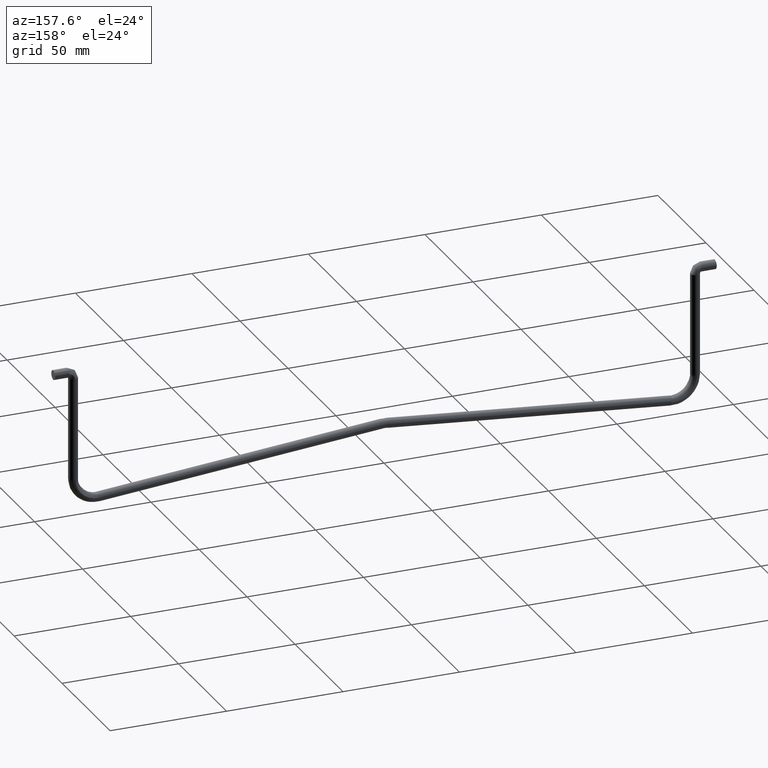
[diagram: clean part render]
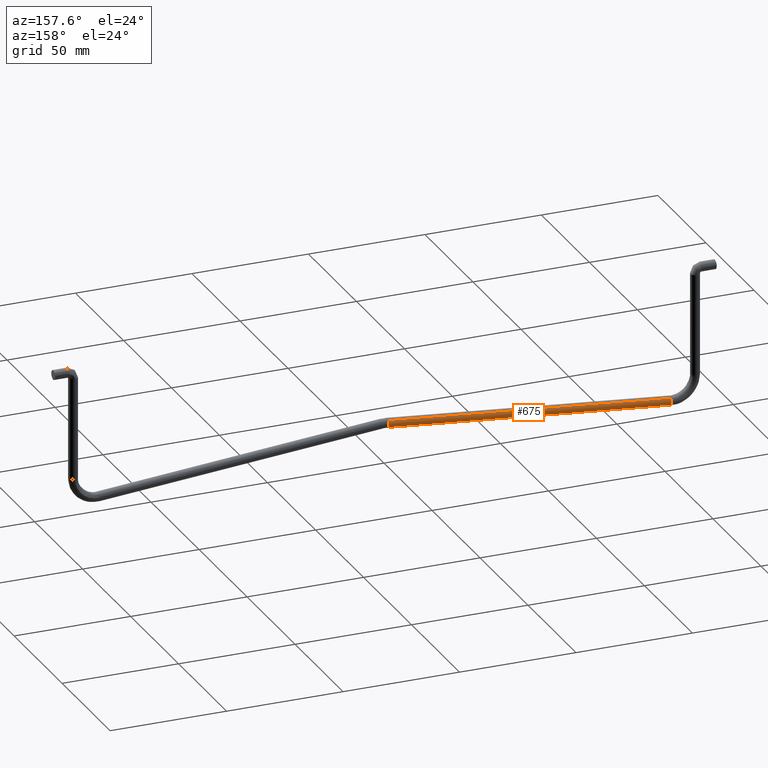
[diagram: same view with one face highlighted and labeled with its STEP entity id]
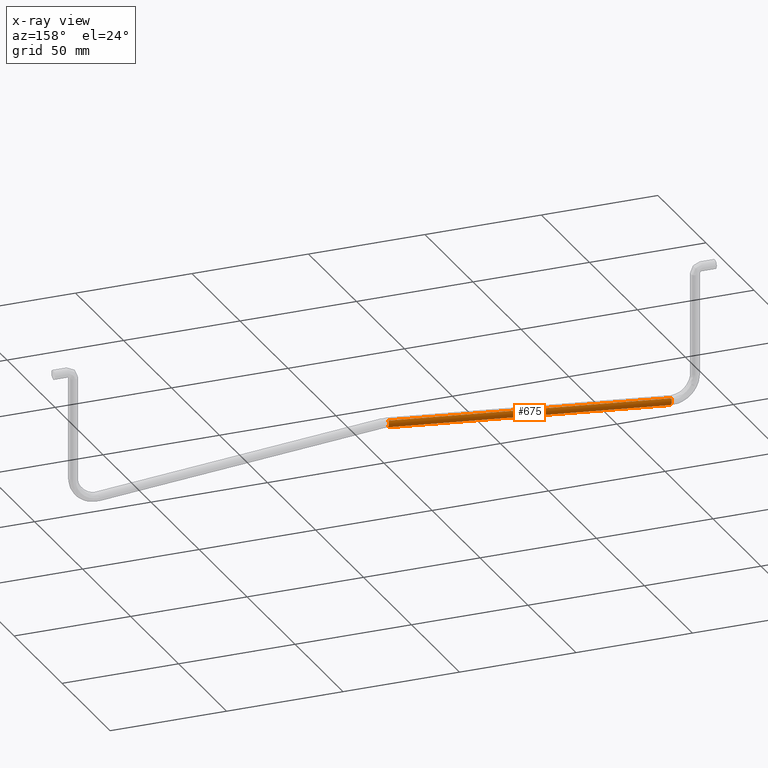
[diagram: x-ray of the same camera — body ghosted, the highlighted face saturated]
A machine part, auxiliary view. The second image highlights one B-rep face of the part: STEP entity #675.
The next image is the same camera in x-ray: the body ghosted, the highlighted face saturated — about 0% of this face is hidden behind the body in this view.
In plain terms, the highlighted face is a freeform B-spline surface patch.
Its self-contained STEP definition (entity closure, byte-faithful):
#605=CARTESIAN_POINT('',(-125.517188430100900,1.474554673620249,-59.578358859859442));
#606=CARTESIAN_POINT('',(-125.649245087282080,2.825735088851567,-58.109729388280783));
#607=CARTESIAN_POINT('',(-125.770252718993800,1.351180415231320,-56.763978420392512));
#608=CARTESIAN_POINT('',(1.976819930898041,1.474554673620251,-48.114315082574649));
#609=CARTESIAN_POINT('',(1.844763273716815,2.825735088851570,-46.645685610995983));
#610=CARTESIAN_POINT('',(1.723755642005128,1.351180415231322,-45.299934643107719));
#618=(BOUNDED_SURFACE()B_SPLINE_SURFACE(2,1,((#605,#608),(#606,#609),(#607,#610)),.UNSPECIFIED.,.F.,.F.,.U.)B_SPLINE_SURFACE_WITH_KNOTS((3,3),(2,2),(0.0,3.313708498984753),(0.0,128.008384364782810),.UNSPECIFIED.)GEOMETRIC_REPRESENTATION_ITEM()RATIONAL_B_SPLINE_SURFACE(((1.0,1.0),(0.707106781186548,0.707106781186548),(1.0,1.0)))REPRESENTATION_ITEM('')SURFACE());
#619=CARTESIAN_POINT('',(-1.254914958121540,1.999961088060420,-47.035749243734479));
#620=VERTEX_POINT('',#619);
#621=CARTESIAN_POINT('',(-1.132790072276494,1.474555115114996,-48.393925426537628));
#622=VERTEX_POINT('',#621);
#623=CARTESIAN_POINT('',(-1.254914958121540,1.999961088060420,-47.035749243734479));
#624=CARTESIAN_POINT('',(-1.229786811085243,2.002120198204557,-47.315204578219259));
#625=CARTESIAN_POINT('',(-1.185106076773051,1.898025314543128,-47.812108290784373));
#626=CARTESIAN_POINT('',(-1.147187390014988,1.622050153548941,-48.233809870127253));
#627=CARTESIAN_POINT('',(-1.132790072276494,1.474555115114996,-48.393925426537628));
#628=B_SPLINE_CURVE_WITH_KNOTS('',3,(#623,#624,#625,#626,#627),.UNSPECIFIED.,.F.,.U.,(4,1,4),(0.000000133486371,0.841578913541103,1.496141226292736),.UNSPECIFIED.);
#629=EDGE_CURVE('',#620,#622,#628,.T.);
#630=ORIENTED_EDGE('',*,*,#629,.T.);
#631=CARTESIAN_POINT('',(-122.483422587907100,1.474554420523467,-59.305568082020322));
#632=VERTEX_POINT('',#631);
#633=CARTESIAN_POINT('',(-122.483422587907100,1.474554420523467,-59.305568082020322));
#634=CARTESIAN_POINT('',(-1.132790072276494,1.474555115114996,-48.393925426537628));
#635=QUASI_UNIFORM_CURVE('',1,(#633,#634),.UNSPECIFIED.,.F.,.U.);
#636=EDGE_CURVE('',#632,#622,#635,.T.);
#637=ORIENTED_EDGE('',*,*,#636,.F.);
#638=CARTESIAN_POINT('',(-122.598924955714000,1.999055059622934,-58.021042332173103));
#639=VERTEX_POINT('',#638);
#640=CARTESIAN_POINT('',(-122.598924955714000,1.999055059622934,-58.021042332173103));
#641=CARTESIAN_POINT('',(-122.575050783191400,1.991179546616325,-58.286551948502137));
#642=CARTESIAN_POINT('',(-122.532913865662710,1.880000124044952,-58.755165333775963));
#643=CARTESIAN_POINT('',(-122.497109321492000,1.614748731197273,-59.153355083661921));
#644=CARTESIAN_POINT('',(-122.483422587907100,1.474554420523467,-59.305568082020322));
#645=B_SPLINE_CURVE_WITH_KNOTS('',3,(#640,#641,#642,#643,#644),.UNSPECIFIED.,.F.,.U.,(4,1,4),(0.000000103355925,0.799967382216894,1.422164961508850),.UNSPECIFIED.);
#646=EDGE_CURVE('',#639,#632,#645,.T.);
#647=ORIENTED_EDGE('',*,*,#646,.F.);
#648=CARTESIAN_POINT('',(-122.736486933756790,1.351179987749532,-56.491186982097858));
#649=VERTEX_POINT('',#648);
#650=CARTESIAN_POINT('',(-122.736486933756790,1.351179987749532,-56.491186982097858));
#651=CARTESIAN_POINT('',(-122.721327322634810,1.536219020375867,-56.659780165252513));
#652=CARTESIAN_POINT('',(-122.679429877419690,1.884833075727903,-57.125730357799704));
#653=CARTESIAN_POINT('',(-122.627795173858700,2.009573934189867,-57.699970631567261));
#654=CARTESIAN_POINT('',(-122.598924955714000,1.999055059622934,-58.021042332173103));
#655=B_SPLINE_CURVE_WITH_KNOTS('',3,(#650,#651,#652,#653,#654),.UNSPECIFIED.,.F.,.U.,(4,1,4),(0.000000221267207,0.752343339809290,1.719597261793195),.UNSPECIFIED.);
#656=EDGE_CURVE('',#649,#639,#655,.T.);
#657=ORIENTED_EDGE('',*,*,#656,.F.);
#658=CARTESIAN_POINT('',(-1.385854341065951,1.351180134412678,-45.579545210657152));
#659=VERTEX_POINT('',#658);
#660=CARTESIAN_POINT('',(-122.736486933756790,1.351179987749532,-56.491186982097858));
#661=CARTESIAN_POINT('',(-1.385854341065951,1.351180134412678,-45.579545210657152));
#662=QUASI_UNIFORM_CURVE('',1,(#660,#661),.UNSPECIFIED.,.F.,.U.);
#663=EDGE_CURVE('',#649,#659,#662,.T.);
#664=ORIENTED_EDGE('',*,*,#663,.T.);
#665=CARTESIAN_POINT('',(-1.385854341065951,1.351180134412678,-45.579545210657152));
#666=CARTESIAN_POINT('',(-1.367216557024387,1.579131245594524,-45.786819872250348));
#667=CARTESIAN_POINT('',(-1.325465716985440,1.895100793907732,-46.251139622977668));
#668=CARTESIAN_POINT('',(-1.276408613544347,1.998645414398331,-46.796713844235953));
#669=CARTESIAN_POINT('',(-1.254914958121540,1.999961088060420,-47.035749243734479));
#670=B_SPLINE_CURVE_WITH_KNOTS('',3,(#665,#666,#667,#668,#669),.UNSPECIFIED.,.F.,.U.,(4,1,4),(0.000000177716398,0.925651448363606,1.645632581810559),.UNSPECIFIED.);
#671=EDGE_CURVE('',#659,#620,#670,.T.);
#672=ORIENTED_EDGE('',*,*,#671,.T.);
#673=EDGE_LOOP('',(#630,#637,#647,#657,#664,#672));
#674=FACE_OUTER_BOUND('',#673,.T.);
#675=ADVANCED_FACE('',(#674),#618,.T.);